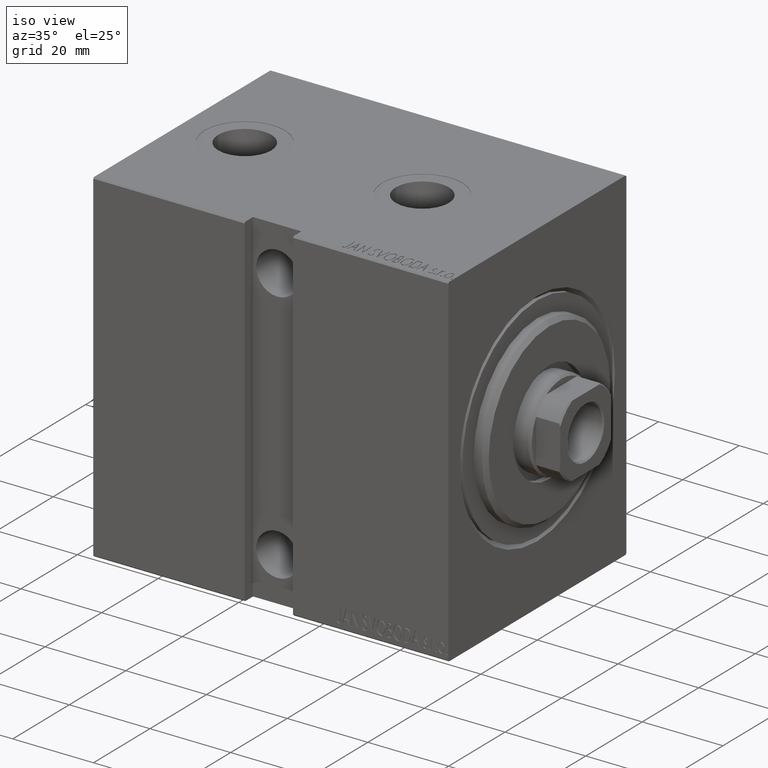
[diagram: clean part render]
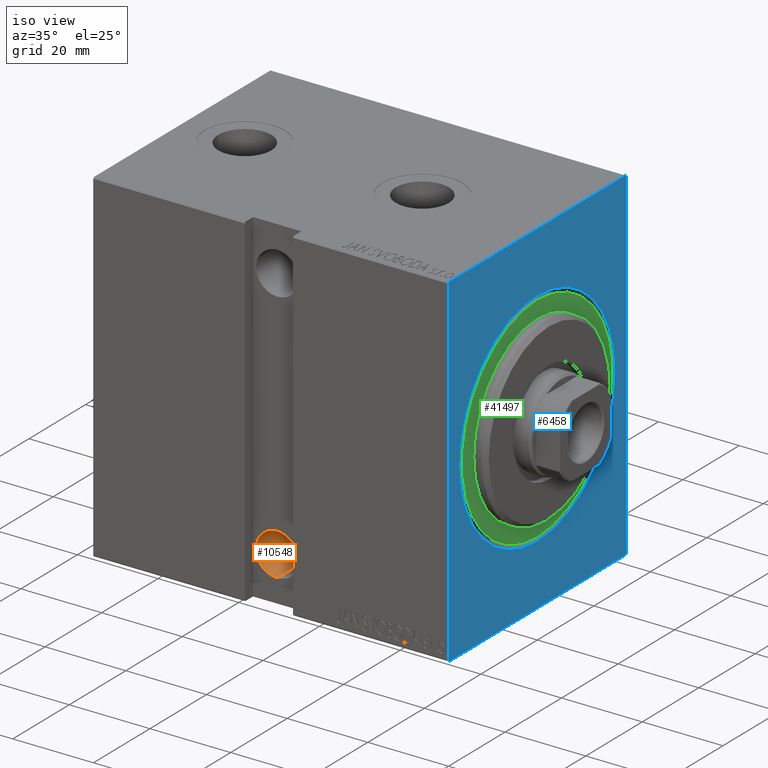
[diagram: same view with three faces highlighted in distinct colors, each labeled with its STEP entity id]
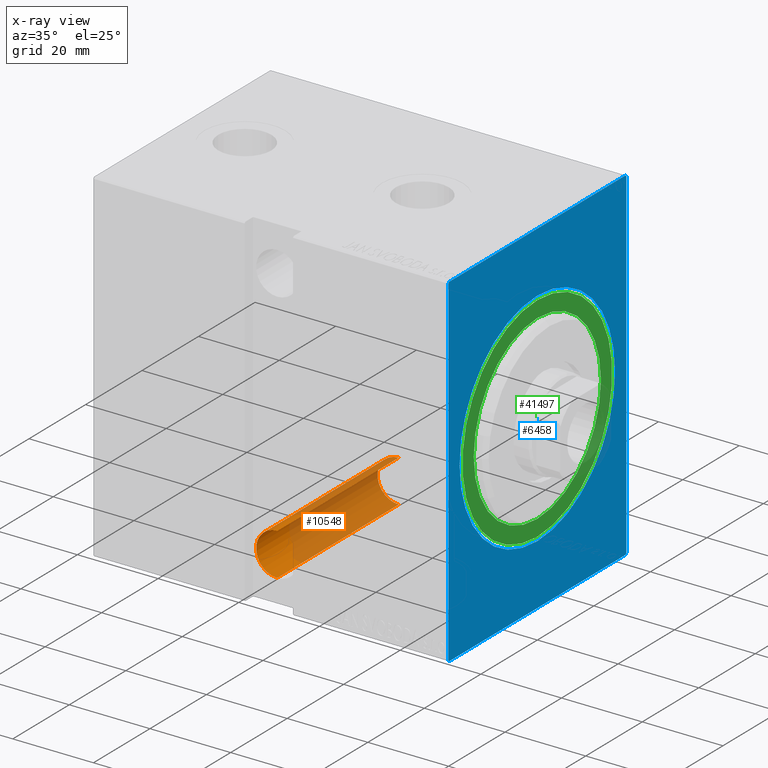
[diagram: x-ray of the same camera — body ghosted, the three highlighted faces saturated]
A machine part, iso view with three faces highlighted in distinct colors.
The next image is the same camera in x-ray (body ghosted, the three faces saturated) — at least one of them is partly hidden behind the body in this view.
Their STEP definitions:

[orange] entity #10548 — the highlighted cylindrical surface (edge-blend (fillet) strip) has radius 5.25 mm, axis along (0, -1, 0).
#103 = VECTOR ( 'NONE', #3478, 1000.000000000000000 ) ;
#1177 = ORIENTED_EDGE ( 'NONE', *, *, #39563, .F. ) ;
#1799 = ORIENTED_EDGE ( 'NONE', *, *, #34109, .F. ) ;
#2596 = LINE ( 'NONE', #20423, #103 ) ;
#2656 = ORIENTED_EDGE ( 'NONE', *, *, #19590, .T. ) ;
#3478 = DIRECTION ( 'NONE',  ( -0.000000000000000000, 1.000000000000000000, -0.000000000000000000 ) ) ;
#7822 = CARTESIAN_POINT ( 'NONE',  ( 44.50000000000002132, -31.50000000000002842, -31.50000000000000000 ) ) ;
#8135 = AXIS2_PLACEMENT_3D ( 'NONE', #8829, #9044, #15080 ) ;
#8829 = CARTESIAN_POINT ( 'NONE',  ( 44.50000000000002132, -14.49999999999999822, -31.50000000000000000 ) ) ;
#8994 = VERTEX_POINT ( 'NONE', #40658 ) ;
#9044 = DIRECTION ( 'NONE',  ( -0.000000000000000000, 1.000000000000000000, -1.963837897332234442E-16 ) ) ;
#9939 = ORIENTED_EDGE ( 'NONE', *, *, #11400, .F. ) ;
#10548 = ADVANCED_FACE ( 'NONE', ( #10937 ), #24968, .F. ) ;
#10937 = FACE_OUTER_BOUND ( 'NONE', #32130, .T. ) ;
#11400 = EDGE_CURVE ( 'NONE', #33175, #23509, #2596, .T. ) ;
#12866 = AXIS2_PLACEMENT_3D ( 'NONE', #7822, #31873, #18497 ) ;
#15080 = DIRECTION ( 'NONE',  ( 0.000000000000000000, -3.304235192336776991E-16, -1.000000000000000000 ) ) ;
#16672 = CIRCLE ( 'NONE', #8135, 5.249999999999997335 ) ;
#18497 = DIRECTION ( 'NONE',  ( 0.000000000000000000, 0.000000000000000000, 1.000000000000000000 ) ) ;
#18832 = CARTESIAN_POINT ( 'NONE',  ( 44.50000000000002132, -14.50000000000000000, -36.75000000000000000 ) ) ;
#18969 = DIRECTION ( 'NONE',  ( -0.000000000000000000, 1.000000000000000000, -0.000000000000000000 ) ) ;
#19590 = EDGE_CURVE ( 'NONE', #23151, #8994, #42569, .T. ) ;
#20423 = CARTESIAN_POINT ( 'NONE',  ( 44.50000000000002132, -31.50000000000002842, -36.75000000000000000 ) ) ;
#21161 = CARTESIAN_POINT ( 'NONE',  ( 44.50000000000002132, 28.50000000000001066, -36.75000000000000000 ) ) ;
#22310 = CARTESIAN_POINT ( 'NONE',  ( 44.50000000000002132, -31.50000000000002842, -26.25000000000000355 ) ) ;
#23151 = VERTEX_POINT ( 'NONE', #38337 ) ;
#23509 = VERTEX_POINT ( 'NONE', #21161 ) ;
#24968 = CYLINDRICAL_SURFACE ( 'NONE', #12866, 5.249999999999997335 ) ;
#26843 = DIRECTION ( 'NONE',  ( 0.000000000000000000, 0.000000000000000000, -1.000000000000000000 ) ) ;
#30175 = DIRECTION ( 'NONE',  ( 0.000000000000000000, -1.000000000000000000, 0.000000000000000000 ) ) ;
#31873 = DIRECTION ( 'NONE',  ( -0.000000000000000000, 1.000000000000000000, -0.000000000000000000 ) ) ;
#32130 = EDGE_LOOP ( 'NONE', ( #9939, #1177, #2656, #1799 ) ) ;
#33175 = VERTEX_POINT ( 'NONE', #18832 ) ;
#34109 = EDGE_CURVE ( 'NONE', #23509, #8994, #42241, .T. ) ;
#36548 = VECTOR ( 'NONE', #18969, 1000.000000000000000 ) ;
#38337 = CARTESIAN_POINT ( 'NONE',  ( 44.50000000000002132, -14.49999999999999645, -26.25000000000000355 ) ) ;
#39563 = EDGE_CURVE ( 'NONE', #23151, #33175, #16672, .T. ) ;
#39954 = CARTESIAN_POINT ( 'NONE',  ( 44.50000000000002132, 28.50000000000001066, -31.50000000000000000 ) ) ;
#40658 = CARTESIAN_POINT ( 'NONE',  ( 44.50000000000002132, 28.50000000000001066, -26.25000000000000355 ) ) ;
#41544 = AXIS2_PLACEMENT_3D ( 'NONE', #39954, #30175, #26843 ) ;
#42241 = CIRCLE ( 'NONE', #41544, 5.249999999999997335 ) ;
#42569 = LINE ( 'NONE', #22310, #36548 ) ;

[blue] entity #6458 — the highlighted planar face has unit normal (-1, 0, 0).
#1581 = VERTEX_POINT ( 'NONE', #42153 ) ;
#1656 = DIRECTION ( 'NONE',  ( 0.000000000000000000, 0.000000000000000000, -1.000000000000000000 ) ) ;
#2462 = VECTOR ( 'NONE', #19644, 1000.000000000000000 ) ;
#2651 = CARTESIAN_POINT ( 'NONE',  ( 0.000000000000000000, 31.19999999999999218, 42.50000000000000000 ) ) ;
#3252 = VERTEX_POINT ( 'NONE', #16242 ) ;
#3955 = ORIENTED_EDGE ( 'NONE', *, *, #14635, .T. ) ;
#4195 = LINE ( 'NONE', #31601, #15742 ) ;
#5063 = VECTOR ( 'NONE', #42862, 1000.000000000000000 ) ;
#5215 = EDGE_CURVE ( 'NONE', #26652, #1581, #31897, .T. ) ;
#5570 = EDGE_LOOP ( 'NONE', ( #21370, #41263, #24795, #3955, #6234, #23730, #24429, #43435 ) ) ;
#6234 = ORIENTED_EDGE ( 'NONE', *, *, #16054, .F. ) ;
#6458 = ADVANCED_FACE ( 'NONE', ( #25120, #8204 ), #14874, .F. ) ;
#6746 = CIRCLE ( 'NONE', #15892, 27.49999999999999645 ) ;
#8204 = FACE_OUTER_BOUND ( 'NONE', #5570, .T. ) ;
#8977 = CARTESIAN_POINT ( 'NONE',  ( 0.000000000000000000, 31.50000000000000000, 42.20000000000001705 ) ) ;
#9324 = VERTEX_POINT ( 'NONE', #14554 ) ;
#9500 = VECTOR ( 'NONE', #37007, 1000.000000000000114 ) ;
#10348 = VERTEX_POINT ( 'NONE', #42159 ) ;
#11192 = EDGE_CURVE ( 'NONE', #17208, #1581, #4195, .T. ) ;
#11628 = EDGE_CURVE ( 'NONE', #16586, #42621, #18403, .T. ) ;
#12562 = DIRECTION ( 'NONE',  ( 0.000000000000000000, 1.000000000000000000, 0.000000000000000000 ) ) ;
#14554 = CARTESIAN_POINT ( 'NONE',  ( 0.000000000000000000, 3.367778697655221307E-15, -27.49999999999999645 ) ) ;
#14635 = EDGE_CURVE ( 'NONE', #16586, #10348, #34692, .T. ) ;
#14661 = DIRECTION ( 'NONE',  ( 1.000000000000000000, 0.000000000000000000, 0.000000000000000000 ) ) ;
#14849 = VERTEX_POINT ( 'NONE', #29749 ) ;
#14874 = PLANE ( 'NONE',  #23440 ) ;
#15542 = ORIENTED_EDGE ( 'NONE', *, *, #23958, .T. ) ;
#15582 = LINE ( 'NONE', #2651, #37939 ) ;
#15742 = VECTOR ( 'NONE', #20918, 1000.000000000000000 ) ;
#15761 = VERTEX_POINT ( 'NONE', #18375 ) ;
#15892 = AXIS2_PLACEMENT_3D ( 'NONE', #39277, #19231, #1656 ) ;
#16054 = EDGE_CURVE ( 'NONE', #26652, #10348, #23035, .T. ) ;
#16242 = CARTESIAN_POINT ( 'NONE',  ( 0.000000000000000000, 0.000000000000000000, 27.49999999999999645 ) ) ;
#16586 = VERTEX_POINT ( 'NONE', #29341 ) ;
#16883 = CARTESIAN_POINT ( 'NONE',  ( 0.000000000000000000, 31.50000000000001421, -42.20000000000000284 ) ) ;
#17208 = VERTEX_POINT ( 'NONE', #18727 ) ;
#18375 = CARTESIAN_POINT ( 'NONE',  ( 0.000000000000000000, -31.19999999999997797, 42.49999999999998579 ) ) ;
#18403 = LINE ( 'NONE', #39521, #5063 ) ;
#18727 = CARTESIAN_POINT ( 'NONE',  ( 0.000000000000000000, -31.49999999999999289, 42.19999999999996732 ) ) ;
#18951 = DIRECTION ( 'NONE',  ( -0.000000000000000000, -0.7071067811865556774, 0.7071067811865393571 ) ) ;
#19231 = DIRECTION ( 'NONE',  ( 1.000000000000000000, 0.000000000000000000, 0.000000000000000000 ) ) ;
#19361 = DIRECTION ( 'NONE',  ( -0.000000000000000000, 0.7071067811865721087, -0.7071067811865230368 ) ) ;
#19644 = DIRECTION ( 'NONE',  ( 0.000000000000000000, -1.000000000000000000, -2.202823461557850341E-16 ) ) ;
#19939 = VECTOR ( 'NONE', #18951, 1000.000000000000000 ) ;
#20344 = ORIENTED_EDGE ( 'NONE', *, *, #21309, .T. ) ;
#20638 = CARTESIAN_POINT ( 'NONE',  ( 0.000000000000000000, -31.19999999999998508, -42.50000000000000711 ) ) ;
#20918 = DIRECTION ( 'NONE',  ( 0.000000000000000000, 0.000000000000000000, -1.000000000000000000 ) ) ;
#21133 = CARTESIAN_POINT ( 'NONE',  ( 0.000000000000000000, 0.000000000000000000, 0.000000000000000000 ) ) ;
#21309 = EDGE_CURVE ( 'NONE', #3252, #9324, #6746, .T. ) ;
#21370 = ORIENTED_EDGE ( 'NONE', *, *, #22146, .F. ) ;
#22146 = EDGE_CURVE ( 'NONE', #14849, #15761, #30772, .T. ) ;
#22567 = CARTESIAN_POINT ( 'NONE',  ( 0.000000000000000000, 0.000000000000000000, 0.000000000000000000 ) ) ;
#23035 = LINE ( 'NONE', #29505, #33631 ) ;
#23082 = CIRCLE ( 'NONE', #32343, 27.49999999999999645 ) ;
#23431 = CARTESIAN_POINT ( 'NONE',  ( 0.000000000000000000, -31.49999999999999289, 42.19999999999996732 ) ) ;
#23440 = AXIS2_PLACEMENT_3D ( 'NONE', #21133, #14661, #30935 ) ;
#23730 = ORIENTED_EDGE ( 'NONE', *, *, #5215, .T. ) ;
#23958 = EDGE_CURVE ( 'NONE', #9324, #3252, #23082, .T. ) ;
#24429 = ORIENTED_EDGE ( 'NONE', *, *, #11192, .F. ) ;
#24795 = ORIENTED_EDGE ( 'NONE', *, *, #11628, .F. ) ;
#25120 = FACE_BOUND ( 'NONE', #34719, .T. ) ;
#26652 = VERTEX_POINT ( 'NONE', #20638 ) ;
#29341 = CARTESIAN_POINT ( 'NONE',  ( 0.000000000000000000, 31.50000000000001421, -42.20000000000000284 ) ) ;
#29505 = CARTESIAN_POINT ( 'NONE',  ( 0.000000000000000000, -31.49999999999999289, -42.50000000000000711 ) ) ;
#29749 = CARTESIAN_POINT ( 'NONE',  ( 0.000000000000000000, 31.19999999999999218, 42.50000000000000000 ) ) ;
#30772 = LINE ( 'NONE', #34102, #2462 ) ;
#30935 = DIRECTION ( 'NONE',  ( 0.000000000000000000, 0.000000000000000000, -1.000000000000000000 ) ) ;
#31601 = CARTESIAN_POINT ( 'NONE',  ( 0.000000000000000000, -31.49999999999999289, 42.49999999999998579 ) ) ;
#31897 = LINE ( 'NONE', #38994, #19939 ) ;
#32343 = AXIS2_PLACEMENT_3D ( 'NONE', #22567, #32588, #43481 ) ;
#32588 = DIRECTION ( 'NONE',  ( 1.000000000000000000, 0.000000000000000000, 0.000000000000000000 ) ) ;
#33631 = VECTOR ( 'NONE', #12562, 1000.000000000000000 ) ;
#34102 = CARTESIAN_POINT ( 'NONE',  ( 0.000000000000000000, 31.50000000000000000, 42.50000000000000000 ) ) ;
#34692 = LINE ( 'NONE', #16883, #37914 ) ;
#34719 = EDGE_LOOP ( 'NONE', ( #20344, #15542 ) ) ;
#36469 = EDGE_CURVE ( 'NONE', #14849, #42621, #15582, .T. ) ;
#37007 = DIRECTION ( 'NONE',  ( -0.000000000000000000, 0.7071067811865393571, 0.7071067811865556774 ) ) ;
#37467 = LINE ( 'NONE', #23431, #9500 ) ;
#37914 = VECTOR ( 'NONE', #40699, 1000.000000000000000 ) ;
#37939 = VECTOR ( 'NONE', #19361, 1000.000000000000000 ) ;
#38805 = EDGE_CURVE ( 'NONE', #17208, #15761, #37467, .T. ) ;
#38994 = CARTESIAN_POINT ( 'NONE',  ( 0.000000000000000000, -31.19999999999998508, -42.50000000000000711 ) ) ;
#39277 = CARTESIAN_POINT ( 'NONE',  ( 0.000000000000000000, 0.000000000000000000, 0.000000000000000000 ) ) ;
#39521 = CARTESIAN_POINT ( 'NONE',  ( 0.000000000000000000, 31.50000000000001421, -42.50000000000000711 ) ) ;
#40699 = DIRECTION ( 'NONE',  ( 0.000000000000000000, -0.7071067811865393571, -0.7071067811865556774 ) ) ;
#41263 = ORIENTED_EDGE ( 'NONE', *, *, #36469, .T. ) ;
#42153 = CARTESIAN_POINT ( 'NONE',  ( 0.000000000000000000, -31.49999999999999289, -42.20000000000000995 ) ) ;
#42159 = CARTESIAN_POINT ( 'NONE',  ( 0.000000000000000000, 31.20000000000001350, -42.50000000000000711 ) ) ;
#42621 = VERTEX_POINT ( 'NONE', #8977 ) ;
#42862 = DIRECTION ( 'NONE',  ( 0.000000000000000000, -1.632680918566406300E-16, 1.000000000000000000 ) ) ;
#43435 = ORIENTED_EDGE ( 'NONE', *, *, #38805, .T. ) ;
#43481 = DIRECTION ( 'NONE',  ( 0.000000000000000000, 0.000000000000000000, -1.000000000000000000 ) ) ;

[green] entity #41497 — the highlighted planar face has unit normal (1, 0, 0).
#211 = VERTEX_POINT ( 'NONE', #17830 ) ;
#780 = ORIENTED_EDGE ( 'NONE', *, *, #41109, .F. ) ;
#1429 = DIRECTION ( 'NONE',  ( 0.000000000000000000, 0.000000000000000000, -1.000000000000000000 ) ) ;
#3597 = CIRCLE ( 'NONE', #17834, 26.50000000000000355 ) ;
#3974 = ORIENTED_EDGE ( 'NONE', *, *, #4507, .T. ) ;
#4507 = EDGE_CURVE ( 'NONE', #36892, #30400, #3597, .T. ) ;
#5520 = DIRECTION ( 'NONE',  ( 1.000000000000000000, 0.000000000000000000, 0.000000000000000000 ) ) ;
#7760 = ORIENTED_EDGE ( 'NONE', *, *, #39187, .T. ) ;
#8164 = AXIS2_PLACEMENT_3D ( 'NONE', #10837, #17536, #21097 ) ;
#9126 = FACE_OUTER_BOUND ( 'NONE', #42284, .T. ) ;
#10606 = VERTEX_POINT ( 'NONE', #38765 ) ;
#10837 = CARTESIAN_POINT ( 'NONE',  ( 0.000000000000000000, 0.000000000000000000, 0.000000000000000000 ) ) ;
#11576 = CIRCLE ( 'NONE', #27942, 22.50000000000000355 ) ;
#12640 = DIRECTION ( 'NONE',  ( 0.000000000000000000, 0.000000000000000000, -1.000000000000000000 ) ) ;
#13094 = AXIS2_PLACEMENT_3D ( 'NONE', #32487, #5520, #12640 ) ;
#15056 = EDGE_CURVE ( 'NONE', #211, #10606, #11576, .T. ) ;
#17149 = CARTESIAN_POINT ( 'NONE',  ( 0.000000000000000000, 0.000000000000000000, 0.000000000000000000 ) ) ;
#17536 = DIRECTION ( 'NONE',  ( 1.000000000000000000, -0.000000000000000000, 0.000000000000000000 ) ) ;
#17830 = CARTESIAN_POINT ( 'NONE',  ( 0.000000000000000000, 2.755455298081545172E-15, -22.50000000000000355 ) ) ;
#17834 = AXIS2_PLACEMENT_3D ( 'NONE', #17149, #30963, #33842 ) ;
#18720 = PLANE ( 'NONE',  #43000 ) ;
#18937 = FACE_BOUND ( 'NONE', #24041, .T. ) ;
#21097 = DIRECTION ( 'NONE',  ( 0.000000000000000000, 0.000000000000000000, -1.000000000000000000 ) ) ;
#21274 = CARTESIAN_POINT ( 'NONE',  ( 0.000000000000000000, 3.245314017740486554E-15, 26.50000000000000355 ) ) ;
#22614 = ORIENTED_EDGE ( 'NONE', *, *, #15056, .F. ) ;
#24041 = EDGE_LOOP ( 'NONE', ( #780, #22614 ) ) ;
#25279 = CARTESIAN_POINT ( 'NONE',  ( 0.000000000000000000, 0.000000000000000000, 0.000000000000000000 ) ) ;
#27369 = CIRCLE ( 'NONE', #8164, 22.50000000000000355 ) ;
#27942 = AXIS2_PLACEMENT_3D ( 'NONE', #25279, #31958, #1429 ) ;
#29171 = DIRECTION ( 'NONE',  ( 0.000000000000000000, 0.000000000000000000, -1.000000000000000000 ) ) ;
#29394 = DIRECTION ( 'NONE',  ( 1.000000000000000000, 0.000000000000000000, 0.000000000000000000 ) ) ;
#30341 = CARTESIAN_POINT ( 'NONE',  ( 0.000000000000000000, 0.000000000000000000, -26.50000000000000355 ) ) ;
#30400 = VERTEX_POINT ( 'NONE', #21274 ) ;
#30963 = DIRECTION ( 'NONE',  ( 1.000000000000000000, 0.000000000000000000, 0.000000000000000000 ) ) ;
#31590 = CIRCLE ( 'NONE', #13094, 26.50000000000000355 ) ;
#31958 = DIRECTION ( 'NONE',  ( 1.000000000000000000, -0.000000000000000000, 0.000000000000000000 ) ) ;
#32487 = CARTESIAN_POINT ( 'NONE',  ( 0.000000000000000000, 0.000000000000000000, 0.000000000000000000 ) ) ;
#33842 = DIRECTION ( 'NONE',  ( 0.000000000000000000, 0.000000000000000000, -1.000000000000000000 ) ) ;
#36071 = CARTESIAN_POINT ( 'NONE',  ( 0.000000000000000000, 0.000000000000000000, 0.000000000000000000 ) ) ;
#36892 = VERTEX_POINT ( 'NONE', #30341 ) ;
#38765 = CARTESIAN_POINT ( 'NONE',  ( 0.000000000000000000, 0.000000000000000000, 22.50000000000000355 ) ) ;
#39187 = EDGE_CURVE ( 'NONE', #30400, #36892, #31590, .T. ) ;
#41109 = EDGE_CURVE ( 'NONE', #10606, #211, #27369, .T. ) ;
#41497 = ADVANCED_FACE ( 'NONE', ( #18937, #9126 ), #18720, .T. ) ;
#42284 = EDGE_LOOP ( 'NONE', ( #3974, #7760 ) ) ;
#43000 = AXIS2_PLACEMENT_3D ( 'NONE', #36071, #29394, #29171 ) ;